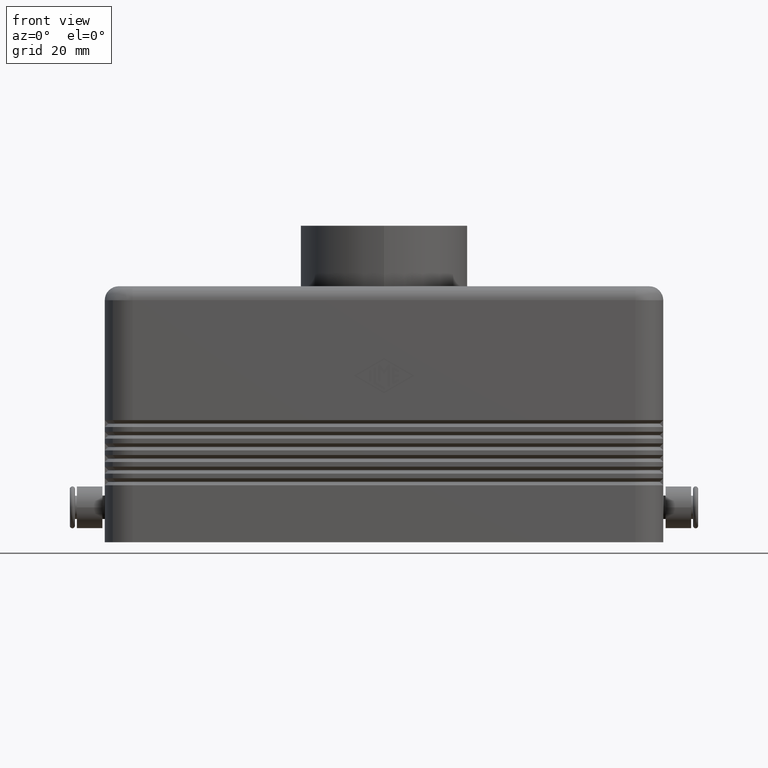
[diagram: clean part render]
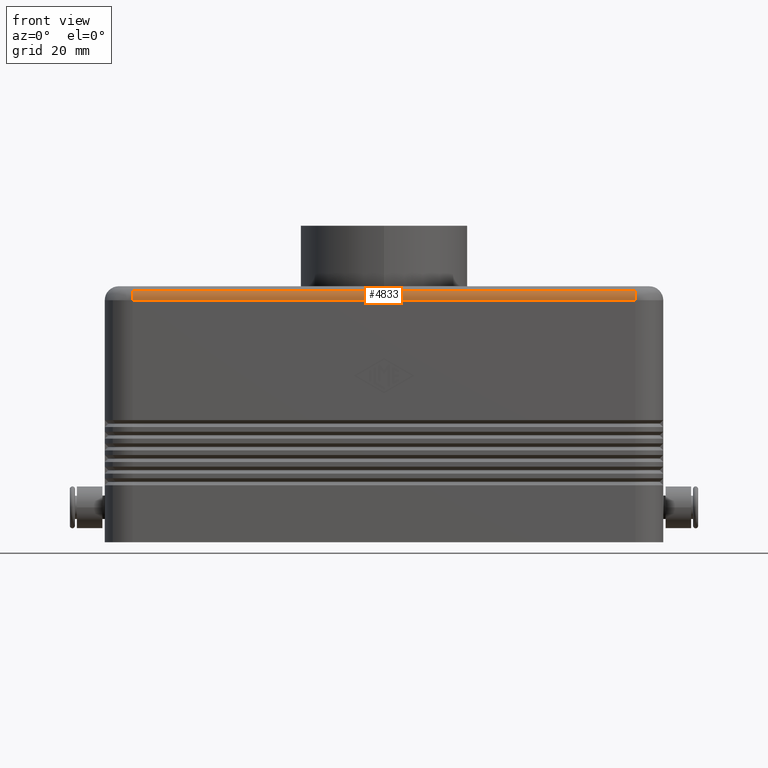
[diagram: same view with one face highlighted and labeled with its STEP entity id]
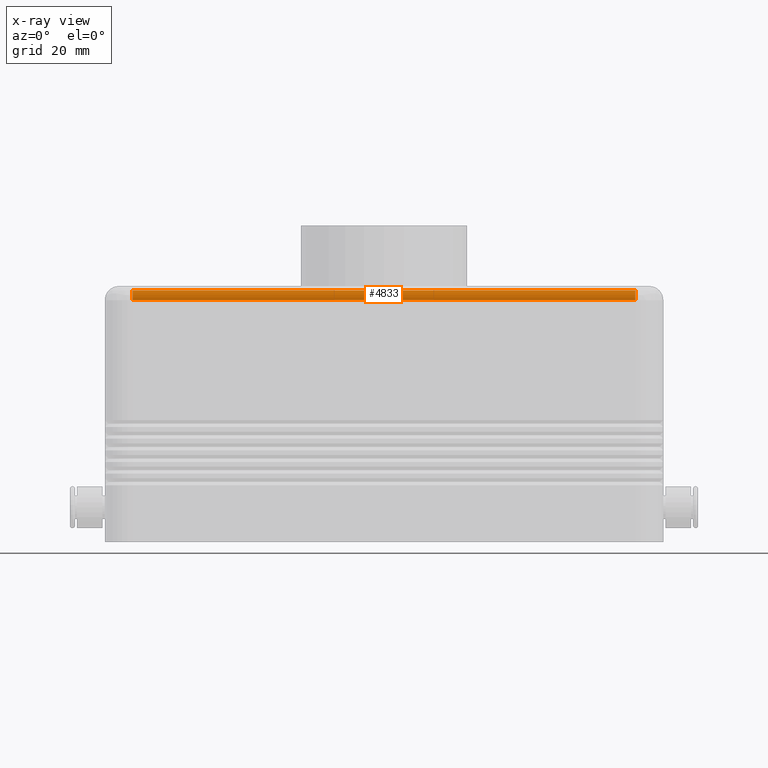
[diagram: x-ray of the same camera — body ghosted, the highlighted face saturated]
A machine part, front view. The second image highlights one B-rep face of the part: STEP entity #4833.
The next image is the same camera in x-ray: the body ghosted, the highlighted face saturated — about 0% of this face is hidden behind the body in this view.
In plain terms, the highlighted cylindrical surface (edge-blend (fillet) strip) has radius 3 mm, axis along (1, 0, 0).
Its self-contained STEP definition (entity closure, byte-faithful):
#1625=CARTESIAN_POINT('',(-53.999999999999986,-21.500000000000000,51.999999999999993));
#1626=VERTEX_POINT('',#1625);
#4615=CARTESIAN_POINT('',(53.999999999999993,-21.500000000000000,51.999999999999993));
#4616=VERTEX_POINT('',#4615);
#4796=CARTESIAN_POINT('',(29.999999999999996,-18.500000000000000,51.999999999999993));
#4797=DIRECTION('',(1.0,0.0,0.0));
#4798=DIRECTION('',(0.0,-0.707106781186547,0.707106781186548));
#4799=AXIS2_PLACEMENT_3D('',#4796,#4797,#4798);
#4800=CYLINDRICAL_SURFACE('',#4799,3.000000000000000);
#4801=CARTESIAN_POINT('',(-53.999999999999986,-20.621320343559638,54.121320343559638));
#4802=VERTEX_POINT('',#4801);
#4803=CARTESIAN_POINT('',(53.999999999999993,-20.621320343559642,54.121320343559638));
#4804=VERTEX_POINT('',#4803);
#4805=CARTESIAN_POINT('',(-53.999999999999986,-20.621320343559638,54.121320343559638));
#4806=DIRECTION('',(1.0,0.0,0.0));
#4807=VECTOR('',#4806,107.999999999999970);
#4808=LINE('',#4805,#4807);
#4809=EDGE_CURVE('',#4802,#4804,#4808,.T.);
#4810=ORIENTED_EDGE('',*,*,#4809,.F.);
#4811=CARTESIAN_POINT('',(-53.999999999999986,-18.500000000000000,51.999999999999993));
#4812=DIRECTION('',(1.0,0.0,0.0));
#4813=DIRECTION('',(0.0,0.0,1.0));
#4814=AXIS2_PLACEMENT_3D('',#4811,#4812,#4813);
#4815=CIRCLE('',#4814,2.999999999999998);
#4816=EDGE_CURVE('',#4802,#1626,#4815,.T.);
#4817=ORIENTED_EDGE('',*,*,#4816,.T.);
#4818=CARTESIAN_POINT('',(-53.999999999999986,-21.500000000000000,51.999999999999993));
#4819=DIRECTION('',(1.0,0.0,0.0));
#4820=VECTOR('',#4819,107.999999999999970);
#4821=LINE('',#4818,#4820);
#4822=EDGE_CURVE('',#1626,#4616,#4821,.T.);
#4823=ORIENTED_EDGE('',*,*,#4822,.T.);
#4824=CARTESIAN_POINT('',(53.999999999999993,-18.500000000000000,51.999999999999993));
#4825=DIRECTION('',(-1.0,0.0,0.0));
#4826=DIRECTION('',(0.0,-1.0,0.0));
#4827=AXIS2_PLACEMENT_3D('',#4824,#4825,#4826);
#4828=CIRCLE('',#4827,3.000000000000000);
#4829=EDGE_CURVE('',#4616,#4804,#4828,.T.);
#4830=ORIENTED_EDGE('',*,*,#4829,.T.);
#4831=EDGE_LOOP('',(#4810,#4817,#4823,#4830));
#4832=FACE_OUTER_BOUND('',#4831,.T.);
#4833=ADVANCED_FACE('',(#4832),#4800,.T.);